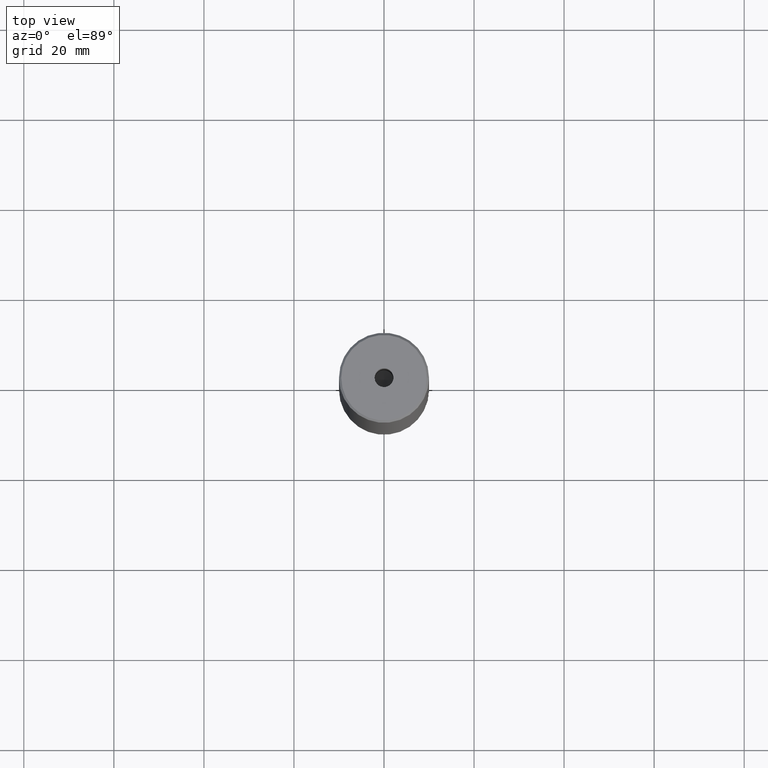
[diagram: clean part render]
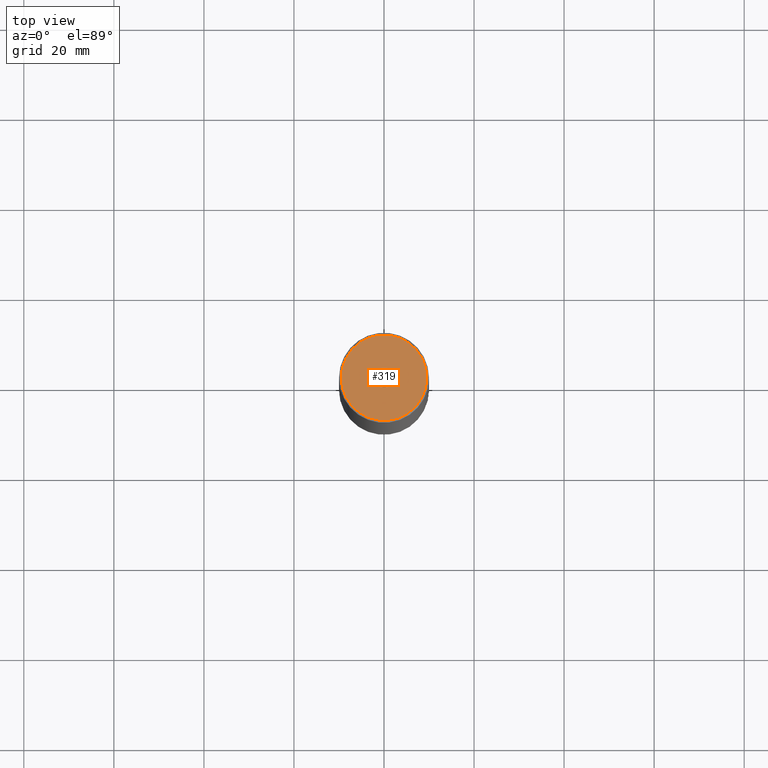
[diagram: same view with one face highlighted and labeled with its STEP entity id]
A machine part, top view. The second image highlights one B-rep face of the part: STEP entity #319.
In plain terms, the highlighted planar face has unit normal (0, -0, 1).
Its self-contained STEP definition (entity closure, byte-faithful):
#5 = VERTEX_POINT ( 'NONE', #473 ) ;
#7 = CIRCLE ( 'NONE', #445, 9.499999999999966249 ) ;
#8 = CIRCLE ( 'NONE', #60, 9.499999999999966249 ) ;
#15 = CARTESIAN_POINT ( 'NONE',  ( 9.499999999999966249, 1.194030629168667300E-15, 0.000000000000000000 ) ) ;
#22 = AXIS2_PLACEMENT_3D ( 'NONE', #375, #106, #464 ) ;
#25 = CARTESIAN_POINT ( 'NONE',  ( 2.099999999999998757, 0.000000000000000000, -1.990051048614449116E-16 ) ) ;
#40 = FACE_OUTER_BOUND ( 'NONE', #385, .T. ) ;
#41 = ORIENTED_EDGE ( 'NONE', *, *, #298, .T. ) ;
#60 = AXIS2_PLACEMENT_3D ( 'NONE', #162, #347, #521 ) ;
#80 = VERTEX_POINT ( 'NONE', #354 ) ;
#95 = DIRECTION ( 'NONE',  ( 1.000000000000000000, 0.000000000000000000, 0.000000000000000000 ) ) ;
#103 = VERTEX_POINT ( 'NONE', #25 ) ;
#106 = DIRECTION ( 'NONE',  ( -0.000000000000000000, -0.000000000000000000, 1.000000000000000000 ) ) ;
#126 = DIRECTION ( 'NONE',  ( -0.000000000000000000, -0.000000000000000000, 1.000000000000000000 ) ) ;
#134 = CIRCLE ( 'NONE', #22, 2.099999999999998757 ) ;
#140 = CARTESIAN_POINT ( 'NONE',  ( 0.000000000000000000, 0.000000000000000000, 0.000000000000000000 ) ) ;
#147 = ORIENTED_EDGE ( 'NONE', *, *, #579, .T. ) ;
#157 = DIRECTION ( 'NONE',  ( 1.000000000000000000, 0.000000000000000000, 0.000000000000000000 ) ) ;
#162 = CARTESIAN_POINT ( 'NONE',  ( 0.000000000000000000, 0.000000000000000000, 0.000000000000000000 ) ) ;
#180 = PLANE ( 'NONE',  #362 ) ;
#192 = AXIS2_PLACEMENT_3D ( 'NONE', #339, #395, #157 ) ;
#201 = CIRCLE ( 'NONE', #192, 2.099999999999998757 ) ;
#214 = EDGE_CURVE ( 'NONE', #103, #80, #134, .T. ) ;
#222 = EDGE_CURVE ( 'NONE', #80, #103, #201, .T. ) ;
#298 = EDGE_CURVE ( 'NONE', #5, #485, #7, .T. ) ;
#319 = ADVANCED_FACE ( 'NONE', ( #504, #40 ), #180, .T. ) ;
#320 = DIRECTION ( 'NONE',  ( 0.000000000000000000, -0.000000000000000000, 1.000000000000000000 ) ) ;
#339 = CARTESIAN_POINT ( 'NONE',  ( 0.000000000000000000, 0.000000000000000000, -1.990051048614449116E-16 ) ) ;
#347 = DIRECTION ( 'NONE',  ( -0.000000000000000000, -0.000000000000000000, 1.000000000000000000 ) ) ;
#354 = CARTESIAN_POINT ( 'NONE',  ( -2.099999999999998757, 2.571758278209440478E-16, -1.990051048614449116E-16 ) ) ;
#362 = AXIS2_PLACEMENT_3D ( 'NONE', #140, #320, #95 ) ;
#368 = CARTESIAN_POINT ( 'NONE',  ( 0.000000000000000000, 0.000000000000000000, 0.000000000000000000 ) ) ;
#375 = CARTESIAN_POINT ( 'NONE',  ( 0.000000000000000000, 0.000000000000000000, -1.990051048614449116E-16 ) ) ;
#385 = EDGE_LOOP ( 'NONE', ( #41, #147 ) ) ;
#395 = DIRECTION ( 'NONE',  ( -0.000000000000000000, -0.000000000000000000, 1.000000000000000000 ) ) ;
#402 = ORIENTED_EDGE ( 'NONE', *, *, #214, .F. ) ;
#409 = EDGE_LOOP ( 'NONE', ( #402, #578 ) ) ;
#445 = AXIS2_PLACEMENT_3D ( 'NONE', #368, #126, #491 ) ;
#464 = DIRECTION ( 'NONE',  ( 1.000000000000000000, 0.000000000000000000, 0.000000000000000000 ) ) ;
#473 = CARTESIAN_POINT ( 'NONE',  ( -9.499999999999966249, 0.000000000000000000, 0.000000000000000000 ) ) ;
#485 = VERTEX_POINT ( 'NONE', #15 ) ;
#491 = DIRECTION ( 'NONE',  ( 1.000000000000000000, 0.000000000000000000, 0.000000000000000000 ) ) ;
#504 = FACE_BOUND ( 'NONE', #409, .T. ) ;
#521 = DIRECTION ( 'NONE',  ( 1.000000000000000000, 0.000000000000000000, 0.000000000000000000 ) ) ;
#578 = ORIENTED_EDGE ( 'NONE', *, *, #222, .F. ) ;
#579 = EDGE_CURVE ( 'NONE', #485, #5, #8, .T. ) ;